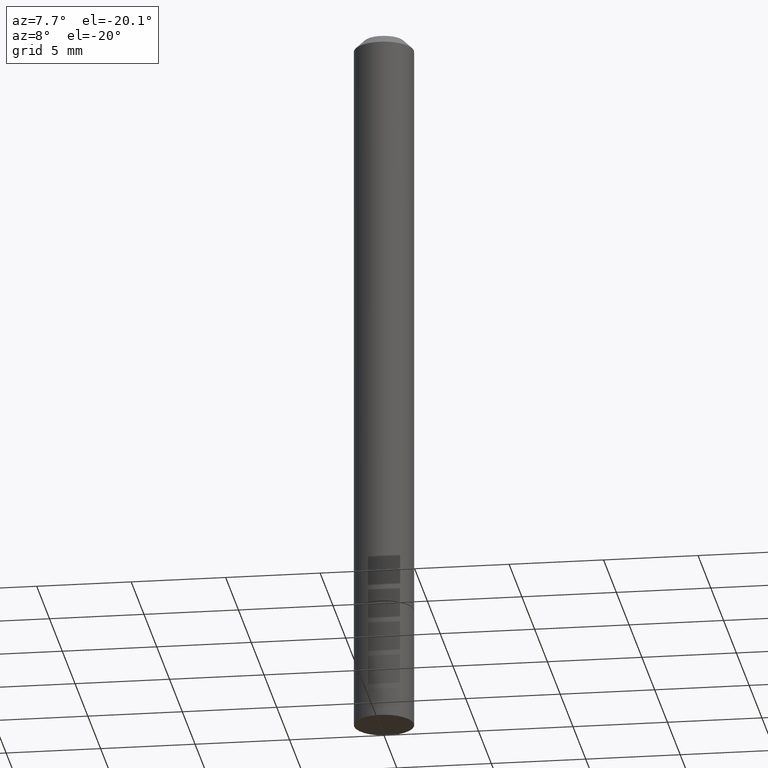
[diagram: clean part render]
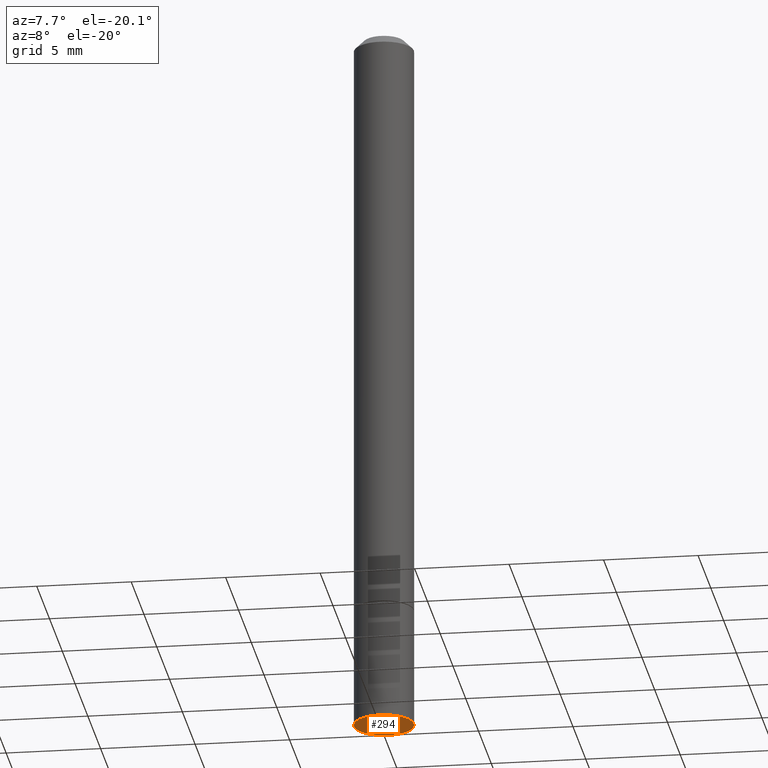
[diagram: same view with one face highlighted and labeled with its STEP entity id]
A machine part, auxiliary view. The second image highlights one B-rep face of the part: STEP entity #294.
In plain terms, the highlighted planar face has unit normal (0, -0, -1).
Its self-contained STEP definition (entity closure, byte-faithful):
#8 = CARTESIAN_POINT ( 'NONE',  ( 0.06250000000000001388, -5.673657175620109846E-15, -1.500000000000000222 ) ) ;
#21 = DIRECTION ( 'NONE',  ( 2.438088387897960049E-29, -3.491481338843145188E-15, -1.000000000000000000 ) ) ;
#25 = CARTESIAN_POINT ( 'NONE',  ( 3.668203209277704895E-29, -5.237222008264718177E-15, -1.500000000000000222 ) ) ;
#28 = DIRECTION ( 'NONE',  ( -2.445468806185136597E-29, 3.491481338843145583E-15, 1.000000000000000000 ) ) ;
#53 = CARTESIAN_POINT ( 'NONE',  ( 4.364351673554284500E-16, 0.06249999999999478195, -1.500000000000000444 ) ) ;
#73 = ORIENTED_EDGE ( 'NONE', *, *, #194, .F. ) ;
#78 = AXIS2_PLACEMENT_3D ( 'NONE', #53, #21, #131 ) ;
#95 = CARTESIAN_POINT ( 'NONE',  ( -0.06250000000000001388, -4.356697631059263102E-15, -1.500000000000000222 ) ) ;
#131 = DIRECTION ( 'NONE',  ( -1.000000000000000000, 6.982962677686265922E-15, -4.876176775795935793E-29 ) ) ;
#144 = DIRECTION ( 'NONE',  ( 1.000000000000000000, -6.982962677686261189E-15, 0.000000000000000000 ) ) ;
#150 = CIRCLE ( 'NONE', #360, 0.06250000000000001388 ) ;
#176 = CIRCLE ( 'NONE', #299, 0.06250000000000001388 ) ;
#183 = VERTEX_POINT ( 'NONE', #8 ) ;
#194 = EDGE_CURVE ( 'NONE', #204, #183, #150, .T. ) ;
#204 = VERTEX_POINT ( 'NONE', #95 ) ;
#231 = DIRECTION ( 'NONE',  ( -2.445468806185136597E-29, 3.491481338843145583E-15, 1.000000000000000000 ) ) ;
#234 = CARTESIAN_POINT ( 'NONE',  ( 3.668203209277704895E-29, -5.237222008264718177E-15, -1.500000000000000222 ) ) ;
#237 = PLANE ( 'NONE',  #78 ) ;
#238 = EDGE_LOOP ( 'NONE', ( #271, #73 ) ) ;
#269 = FACE_OUTER_BOUND ( 'NONE', #238, .T. ) ;
#271 = ORIENTED_EDGE ( 'NONE', *, *, #290, .F. ) ;
#290 = EDGE_CURVE ( 'NONE', #183, #204, #176, .T. ) ;
#294 = ADVANCED_FACE ( 'NONE', ( #269 ), #237, .T. ) ;
#299 = AXIS2_PLACEMENT_3D ( 'NONE', #25, #28, #356 ) ;
#356 = DIRECTION ( 'NONE',  ( 1.000000000000000000, -6.982962677686261189E-15, 0.000000000000000000 ) ) ;
#360 = AXIS2_PLACEMENT_3D ( 'NONE', #234, #231, #144 ) ;